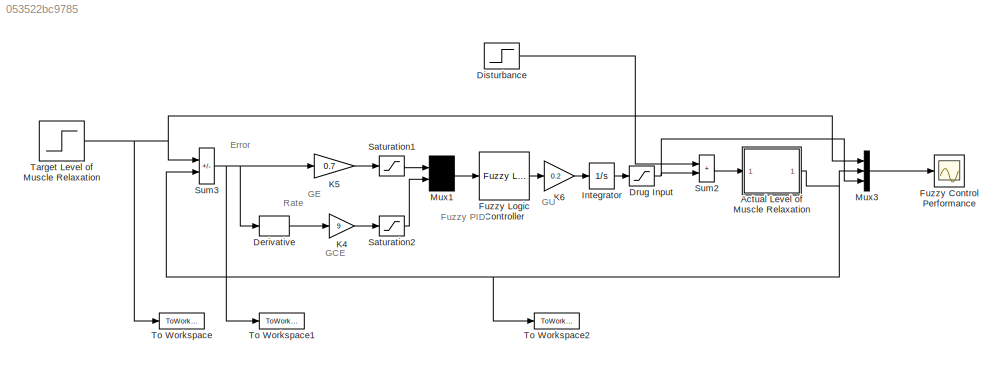
MODEL slx_053522bc9785
KIND model
CONFIG AbsTol = 1e-3
CONFIG EnableMultiTasking = on
CONFIG FixedStep = auto
CONFIG MaxStep = 1
CONFIG MinStep = auto
CONFIG RelTol = 1e-3
CONFIG SampleTimeConstraint = Unconstrained
CONFIG SolverName = VariableStepAuto
CONFIG StartTime = 0.0
CONFIG StopTime = 300
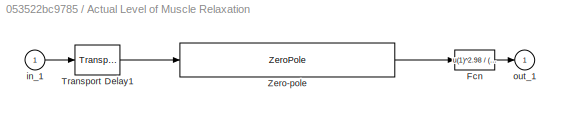
BLOCK [SubSystem] Actual Level of Muscle Relaxation
  ShowPortLabels = none
BLOCK [Fcn] Actual Level of Muscle Relaxation/Fcn
  Expr = u(1)^2.98 / (u(1)^2.98 + 0.404^2.98)
BLOCK [TransportDelay] Actual Level of Muscle Relaxation/Transport Delay1
BLOCK [ZeroPole] Actual Level of Muscle Relaxation/Zero-pole
  Gain = [10.64/(20.0*3.08*4.81)]
  Poles = [-1/20.0; -1/3.08; -1/4.81]
  Zeros = [-1/10.64]
BLOCK [Inport] Actual Level of Muscle Relaxation/in_1
BLOCK [Outport] Actual Level of Muscle Relaxation/out_1
  VectorParamsAs1DForOutWhenUnconnected = off
BLOCK [Derivative] Derivative
BLOCK [Step] Disturbance
  After = 0.2
  SampleTime = 0
  Time = 150
BLOCK [Saturate] Drug Input
  LowerLimit = 0
  UpperLimit = 1
BLOCK [Scope] Fuzzy Control Performance
  ActiveDisplayYMaximum = 1.7198073670063037
  ActiveDisplayYMinimum = -0.1007814199440541
  DataLoggingDecimateData = on
  DataLoggingDecimation = 1
  DataLoggingLimitDataPoints = on
  DataLoggingSaveFormat = Structure With Time
  Floating = off
  GraphicalSettings = {"Style":{"BackgroundColor":[0.12941176470588237,0.12941176470588237,0.12941176470588237],"AxesColor":[1,1,1],"LabelsColor":[0.5019607843137255,0.5019607843137255,0.5019607843137255],"PreserveColors":false,"Visible":[true,true,true],"LineStyle":["-","-","-"],"LineWidth":[1.5,1.5,1.5],"BarWidth":[0.9,0.9,0.9],"LineColor":["auto","auto","auto"],"LineFaceAlpha":[1,1,1],"LineEdgeAlpha":[1,1,1],"Marker...<+2260ch>
  MultipleDisplayCache = [{"MaxYLimMag":1.125,"MaxYLimReal":1.7198073670063037,"MinYLimMag":0,"MinYLimReal":-0.1007814199440541,"PlotAsMagnitudePhase":false,"ShowGrid":true,"ShowLegend":true,"Title":"%<SignalLabel>","YLabel":""}]
  NumInputPorts = 1
  ScopeFrameLocation = window
  ShowLegend = on
  WasSavedAsWebScope = on
  WindowPosition = [1.000000,49.000000,1920.000000,1009.000000,]
BLOCK [Reference] Fuzzy Logic Controller  REF=fuzblock/Fuzzy Logic   (lib defined in mdl_858b3b3e7478)
Controller
  SourceBlock = fuzblock/Fuzzy Logic \nController
  SourceType = Fuzzy Inference System
BLOCK [Integrator] Integrator
BLOCK [Gain] K4
  Gain = 9
  OutDataTypeStr = Inherit: Same as input
  ParamDataTypeStr = Inherit: Same as input
  SaturateOnIntegerOverflow = on
BLOCK [Gain] K5
  Gain = 0.7
  OutDataTypeStr = Inherit: Same as input
  ParamDataTypeStr = Inherit: Same as input
  SaturateOnIntegerOverflow = on
BLOCK [Gain] K6
  Gain = 0.2
  OutDataTypeStr = Inherit: Same as input
  ParamDataTypeStr = Inherit: Same as input
  SaturateOnIntegerOverflow = on
BLOCK [Mux] Mux1
  Inputs = 2
BLOCK [Mux] Mux3
  DisplayOption = bar
  Inputs = 3
BLOCK [Saturate] Saturation1
  LowerLimit = -1
  UpperLimit = 1
BLOCK [Saturate] Saturation2
  LowerLimit = -1
  UpperLimit = 1
BLOCK [Sum] Sum2
  IconShape = rectangular
  InputSameDT = on
  OutDataTypeStr = Inherit: Same as first input
  SaturateOnIntegerOverflow = on
BLOCK [Sum] Sum3
  IconShape = rectangular
  InputSameDT = on
  Inputs = +-
  OutDataTypeStr = Inherit: Same as first input
  SaturateOnIntegerOverflow = on
BLOCK [Step] Target Level of Muscle Relaxation
  After = 0.8
  SampleTime = 0
  Time = 0
BLOCK [ToWorkspace] To Workspace
  FixptAsFi = on
  MaxDataPoints = inf
  SampleTime = -1
  SaveFormat = Timeseries
  VariableName = target
BLOCK [ToWorkspace] To Workspace1
  FixptAsFi = on
  MaxDataPoints = inf
  SampleTime = -1
  SaveFormat = Timeseries
  VariableName = error
BLOCK [ToWorkspace] To Workspace2
  FixptAsFi = on
  MaxDataPoints = inf
  SampleTime = -1
  SaveFormat = Timeseries
  VariableName = out
ANNOTATION (root): GCE
ANNOTATION (root): GE
ANNOTATION (root): GU
ANNOTATION (root): Error
ANNOTATION (root): Rate
ANNOTATION (root): Fuzzy PID
LINE Actual Level of Muscle Relaxation/Fcn:1 -> Actual Level of Muscle Relaxation/out_1:1
LINE Actual Level of Muscle Relaxation/Transport Delay1:1 -> Actual Level of Muscle Relaxation/Zero-pole:1
LINE Actual Level of Muscle Relaxation/Zero-pole:1 -> Actual Level of Muscle Relaxation/Fcn:1
LINE Actual Level of Muscle Relaxation/in_1:1 -> Actual Level of Muscle Relaxation/Transport Delay1:1
NET Actual Level of Muscle Relaxation:1 -> Mux3:2, Sum3:2, To Workspace2:1
LINE Derivative:1 -> K4:1
LINE Disturbance:1 -> Sum2:1
NET Drug Input:1 -> Mux3:3, Sum2:2
LINE Fuzzy Logic Controller:1 -> K6:1
LINE Integrator:1 -> Drug Input:1
LINE K4:1 -> Saturation2:1
LINE K5:1 -> Saturation1:1
LINE K6:1 -> Integrator:1
LINE Mux1:1 -> Fuzzy Logic Controller:1
LINE Mux3:1 -> Fuzzy Control Performance:1
LINE Saturation1:1 -> Mux1:1
LINE Saturation2:1 -> Mux1:2
LINE Sum2:1 -> Actual Level of Muscle Relaxation:1
NET Sum3:1 -> Derivative:1, K5:1, To Workspace1:1
NET Target Level of Muscle Relaxation:1 -> Mux3:1, Sum3:1, To Workspace:1
note: NET lines group one-source signal fan-out (src -> all destinations, sorted); 1:1 wires keep LINE
